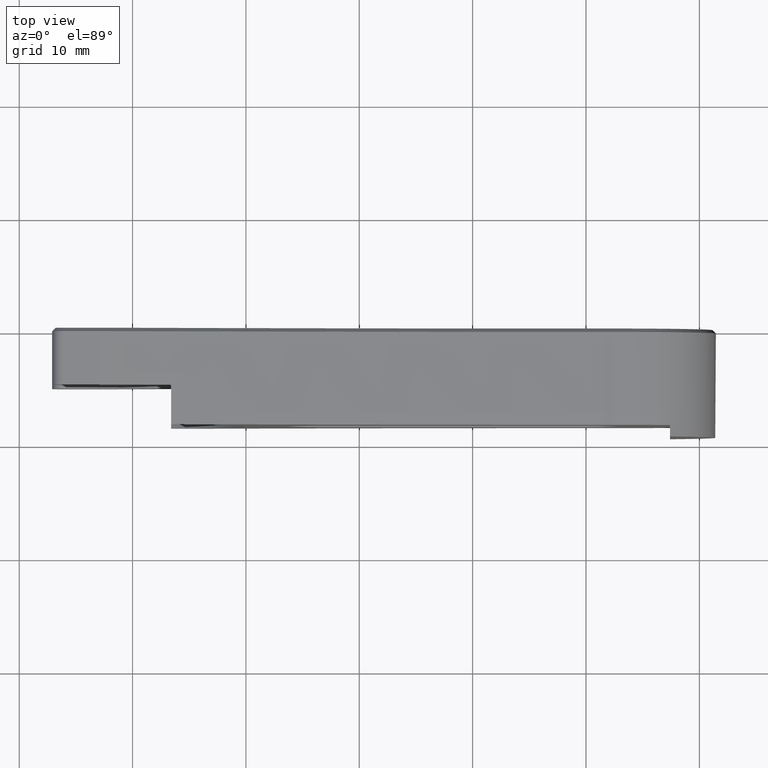
[diagram: clean part render]
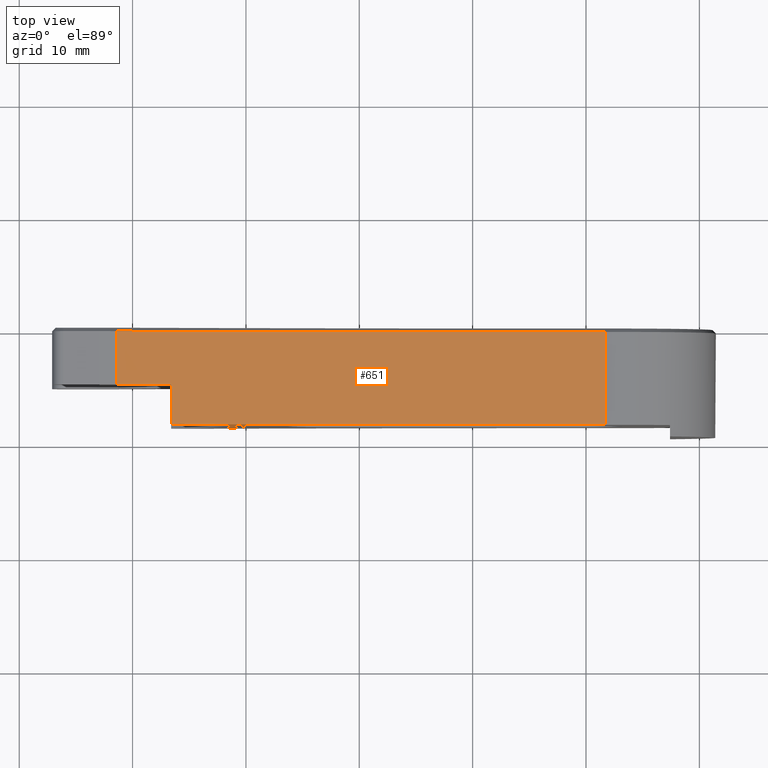
[diagram: same view with one face highlighted and labeled with its STEP entity id]
A machine part, top view. The second image highlights one B-rep face of the part: STEP entity #651.
In plain terms, the highlighted cylindrical surface (partial cylindrical patch) has radius 199.995 mm, axis along (-0, -1, -0).
Its self-contained STEP definition (entity closure, byte-faithful):
#55 = CARTESIAN_POINT ( 'NONE',  ( -30.69820305420873652, 10.09999999999999964, 181.6956331357765180 ) ) ;
#62 = CIRCLE ( 'NONE', #1332, 199.9950038775353391 ) ;
#112 = EDGE_CURVE ( 'NONE', #620, #712, #62, .T. ) ;
#159 = DIRECTION ( 'NONE',  ( 7.112543927207386922E-15, 0.000000000000000000, 1.000000000000000000 ) ) ;
#161 = VERTEX_POINT ( 'NONE', #313 ) ;
#168 = EDGE_CURVE ( 'NONE', #389, #161, #795, .T. ) ;
#178 = DIRECTION ( 'NONE',  ( -0.000000000000000000, -1.000000000000000000, -0.000000000000000000 ) ) ;
#221 = AXIS2_PLACEMENT_3D ( 'NONE', #1619, #460, #1485 ) ;
#236 = EDGE_CURVE ( 'NONE', #161, #473, #782, .T. ) ;
#273 = ORIENTED_EDGE ( 'NONE', *, *, #168, .F. ) ;
#275 = AXIS2_PLACEMENT_3D ( 'NONE', #338, #1231, #1326 ) ;
#313 = CARTESIAN_POINT ( 'NONE',  ( -71.43420546124251302, 9.799999999999998934, -14.10676645082076419 ) ) ;
#338 = CARTESIAN_POINT ( 'NONE',  ( -30.69820305420873652, 9.799999999999997158, 181.6956331357765180 ) ) ;
#355 = VECTOR ( 'NONE', #417, 1000.000000000000000 ) ;
#389 = VERTEX_POINT ( 'NONE', #509 ) ;
#417 = DIRECTION ( 'NONE',  ( -0.000000000000000000, -1.000000000000000000, -0.000000000000000000 ) ) ;
#425 = CARTESIAN_POINT ( 'NONE',  ( -28.30829174901889189, 9.800000000000006040, -18.28509068511750968 ) ) ;
#438 = AXIS2_PLACEMENT_3D ( 'NONE', #55, #823, #477 ) ;
#460 = DIRECTION ( 'NONE',  ( -0.000000000000000000, 1.000000000000000000, -0.000000000000000000 ) ) ;
#473 = VERTEX_POINT ( 'NONE', #425 ) ;
#477 = DIRECTION ( 'NONE',  ( 0.000000000000000000, 0.000000000000000000, -1.000000000000000000 ) ) ;
#483 = CARTESIAN_POINT ( 'NONE',  ( -28.30829174901908374, 1.599999999999998979, -18.28509068511752389 ) ) ;
#509 = CARTESIAN_POINT ( 'NONE',  ( -71.43420546124238513, 5.100000000000000533, -14.10676645082079084 ) ) ;
#604 = EDGE_CURVE ( 'NONE', #473, #712, #816, .T. ) ;
#620 = VERTEX_POINT ( 'NONE', #1325 ) ;
#651 = ADVANCED_FACE ( 'NONE', ( #1603 ), #851, .F. ) ;
#661 = ORIENTED_EDGE ( 'NONE', *, *, #112, .T. ) ;
#685 = CARTESIAN_POINT ( 'NONE',  ( -30.69820305420873652, 1.599999999999998979, 181.6956331357765180 ) ) ;
#695 = ORIENTED_EDGE ( 'NONE', *, *, #604, .F. ) ;
#703 = EDGE_LOOP ( 'NONE', ( #749, #273, #1086, #1557, #661, #695 ) ) ;
#712 = VERTEX_POINT ( 'NONE', #483 ) ;
#748 = EDGE_CURVE ( 'NONE', #620, #1299, #1492, .T. ) ;
#749 = ORIENTED_EDGE ( 'NONE', *, *, #236, .F. ) ;
#769 = CARTESIAN_POINT ( 'NONE',  ( -66.59457426940839753, 10.09999999999999964, -15.05154501312594384 ) ) ;
#782 = CIRCLE ( 'NONE', #275, 199.9950038775353676 ) ;
#795 = LINE ( 'NONE', #931, #1574 ) ;
#816 = LINE ( 'NONE', #1543, #355 ) ;
#823 = DIRECTION ( 'NONE',  ( -0.000000000000000000, -1.000000000000000000, -0.000000000000000000 ) ) ;
#851 = CYLINDRICAL_SURFACE ( 'NONE', #438, 199.9950038775353676 ) ;
#931 = CARTESIAN_POINT ( 'NONE',  ( -71.43420546124238513, 10.09999999999999964, -14.10676645082079084 ) ) ;
#1086 = ORIENTED_EDGE ( 'NONE', *, *, #1498, .F. ) ;
#1174 = DIRECTION ( 'NONE',  ( 0.000000000000000000, 1.000000000000000000, 0.000000000000000000 ) ) ;
#1231 = DIRECTION ( 'NONE',  ( -0.000000000000000000, -1.000000000000000000, -0.000000000000000000 ) ) ;
#1299 = VERTEX_POINT ( 'NONE', #1506 ) ;
#1325 = CARTESIAN_POINT ( 'NONE',  ( -66.59457426940839753, 1.599999999999998979, -15.05154501312594384 ) ) ;
#1326 = DIRECTION ( 'NONE',  ( 0.000000000000000000, 0.000000000000000000, -1.000000000000000000 ) ) ;
#1332 = AXIS2_PLACEMENT_3D ( 'NONE', #685, #178, #159 ) ;
#1358 = DIRECTION ( 'NONE',  ( 0.000000000000000000, 1.000000000000000000, 0.000000000000000000 ) ) ;
#1463 = CIRCLE ( 'NONE', #221, 199.9950038775353676 ) ;
#1485 = DIRECTION ( 'NONE',  ( 8.847310738721382347E-16, 0.000000000000000000, -1.000000000000000000 ) ) ;
#1492 = LINE ( 'NONE', #769, #1542 ) ;
#1498 = EDGE_CURVE ( 'NONE', #1299, #389, #1463, .T. ) ;
#1506 = CARTESIAN_POINT ( 'NONE',  ( -66.59457426940839753, 5.100000000000000533, -15.05154501312594384 ) ) ;
#1542 = VECTOR ( 'NONE', #1358, 1000.000000000000000 ) ;
#1543 = CARTESIAN_POINT ( 'NONE',  ( -28.30829174901908374, 10.09999999999999964, -18.28509068511752389 ) ) ;
#1557 = ORIENTED_EDGE ( 'NONE', *, *, #748, .F. ) ;
#1574 = VECTOR ( 'NONE', #1174, 1000.000000000000000 ) ;
#1603 = FACE_OUTER_BOUND ( 'NONE', #703, .T. ) ;
#1619 = CARTESIAN_POINT ( 'NONE',  ( -30.69820305420873652, 5.100000000000000533, 181.6956331357765180 ) ) ;